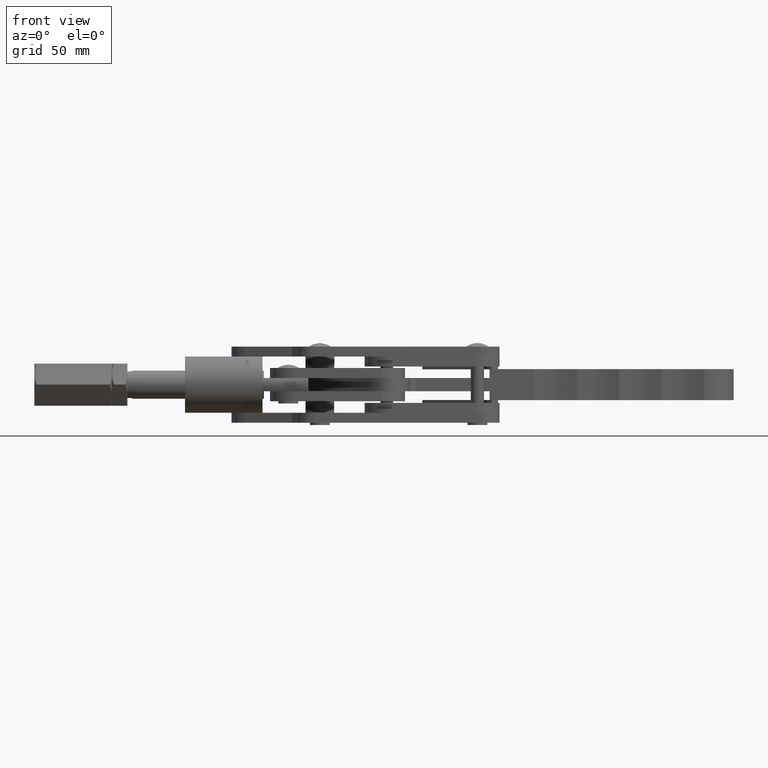
[diagram: clean part render]
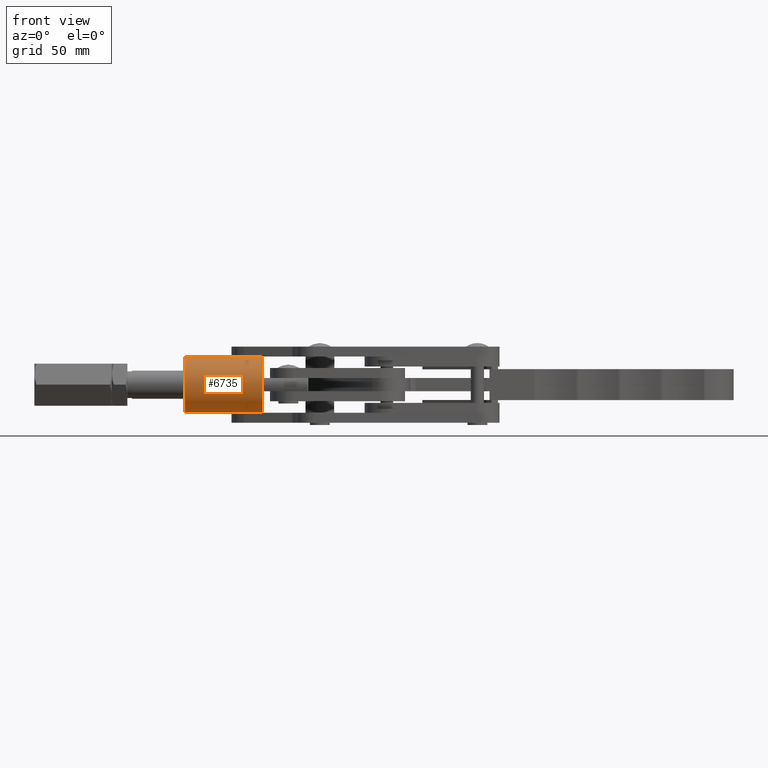
[diagram: same view with one face highlighted and labeled with its STEP entity id]
A machine part, front view. The second image highlights one B-rep face of the part: STEP entity #6735.
In plain terms, the highlighted cylindrical surface (edge-blend (fillet) strip) has radius 12.7 mm, axis along (-1, -0, -0).
Its self-contained STEP definition (entity closure, byte-faithful):
#393 = DIRECTION ( 'NONE',  ( -1.000000000000000000, -0.0000000000000000000, -0.0000000000000000000 ) ) ;
#411 = DIRECTION ( 'NONE',  ( 0.0000000000000000000, 0.0000000000000000000, -1.000000000000000000 ) ) ;
#624 = VECTOR ( 'NONE', #1517, 1000.000000000000000 ) ;
#966 = CARTESIAN_POINT ( 'NONE',  ( -107.0000001797797600, 24.00000000000000000, -4.499999999999986700 ) ) ;
#1007 = CARTESIAN_POINT ( 'NONE',  ( -107.0000001797797600, 24.00000000000000000, -17.19999999999998500 ) ) ;
#1224 = AXIS2_PLACEMENT_3D ( 'NONE', #1007, #393, #6551 ) ;
#1500 = EDGE_CURVE ( 'NONE', #4917, #2781, #5568, .T. ) ;
#1503 = CARTESIAN_POINT ( 'NONE',  ( -142.0000001797797600, 24.00000000000000000, -4.499999999999986700 ) ) ;
#1517 = DIRECTION ( 'NONE',  ( -1.000000000000000000, -0.0000000000000000000, -0.0000000000000000000 ) ) ;
#1610 = ORIENTED_EDGE ( 'NONE', *, *, #7302, .F. ) ;
#1800 = DIRECTION ( 'NONE',  ( 1.000000000000000000, 0.0000000000000000000, 0.0000000000000000000 ) ) ;
#2012 = AXIS2_PLACEMENT_3D ( 'NONE', #7813, #4120, #411 ) ;
#2602 = CYLINDRICAL_SURFACE ( 'NONE', #1224, 12.69999999999999900 ) ;
#2773 = LINE ( 'NONE', #7980, #7721 ) ;
#2779 = VERTEX_POINT ( 'NONE', #5217 ) ;
#2781 = VERTEX_POINT ( 'NONE', #1503 ) ;
#3007 = EDGE_CURVE ( 'NONE', #2781, #2779, #4665, .T. ) ;
#3016 = CARTESIAN_POINT ( 'NONE',  ( -107.0000001797797600, 24.00000000000000000, -29.89999999999998400 ) ) ;
#3640 = DIRECTION ( 'NONE',  ( -1.000000000000000000, -0.0000000000000000000, -0.0000000000000000000 ) ) ;
#3743 = CIRCLE ( 'NONE', #2012, 12.69999999999999900 ) ;
#3952 = CARTESIAN_POINT ( 'NONE',  ( -107.0000001797797600, 24.00000000000000000, -4.499999999999986700 ) ) ;
#4120 = DIRECTION ( 'NONE',  ( 1.000000000000000000, 0.0000000000000000000, 0.0000000000000000000 ) ) ;
#4460 = ORIENTED_EDGE ( 'NONE', *, *, #7507, .F. ) ;
#4665 = CIRCLE ( 'NONE', #6920, 12.69999999999999900 ) ;
#4867 = ORIENTED_EDGE ( 'NONE', *, *, #1500, .T. ) ;
#4917 = VERTEX_POINT ( 'NONE', #966 ) ;
#5087 = EDGE_LOOP ( 'NONE', ( #4460, #1610, #4867, #5621 ) ) ;
#5217 = CARTESIAN_POINT ( 'NONE',  ( -142.0000001797797600, 24.00000000000000000, -29.89999999999998400 ) ) ;
#5517 = CARTESIAN_POINT ( 'NONE',  ( -142.0000001797797600, 24.00000000000000000, -17.19999999999998500 ) ) ;
#5568 = LINE ( 'NONE', #3952, #624 ) ;
#5621 = ORIENTED_EDGE ( 'NONE', *, *, #3007, .T. ) ;
#6086 = FACE_OUTER_BOUND ( 'NONE', #5087, .T. ) ;
#6123 = DIRECTION ( 'NONE',  ( 0.0000000000000000000, 0.0000000000000000000, -1.000000000000000000 ) ) ;
#6551 = DIRECTION ( 'NONE',  ( 0.0000000000000000000, 0.0000000000000000000, 1.000000000000000000 ) ) ;
#6735 = ADVANCED_FACE ( 'NONE', ( #6086 ), #2602, .T. ) ;
#6858 = VERTEX_POINT ( 'NONE', #3016 ) ;
#6920 = AXIS2_PLACEMENT_3D ( 'NONE', #5517, #1800, #6123 ) ;
#7302 = EDGE_CURVE ( 'NONE', #4917, #6858, #3743, .T. ) ;
#7507 = EDGE_CURVE ( 'NONE', #6858, #2779, #2773, .T. ) ;
#7721 = VECTOR ( 'NONE', #3640, 1000.000000000000000 ) ;
#7813 = CARTESIAN_POINT ( 'NONE',  ( -107.0000001797797600, 24.00000000000000000, -17.19999999999998500 ) ) ;
#7980 = CARTESIAN_POINT ( 'NONE',  ( -107.0000001797797600, 24.00000000000000000, -29.89999999999998400 ) ) ;